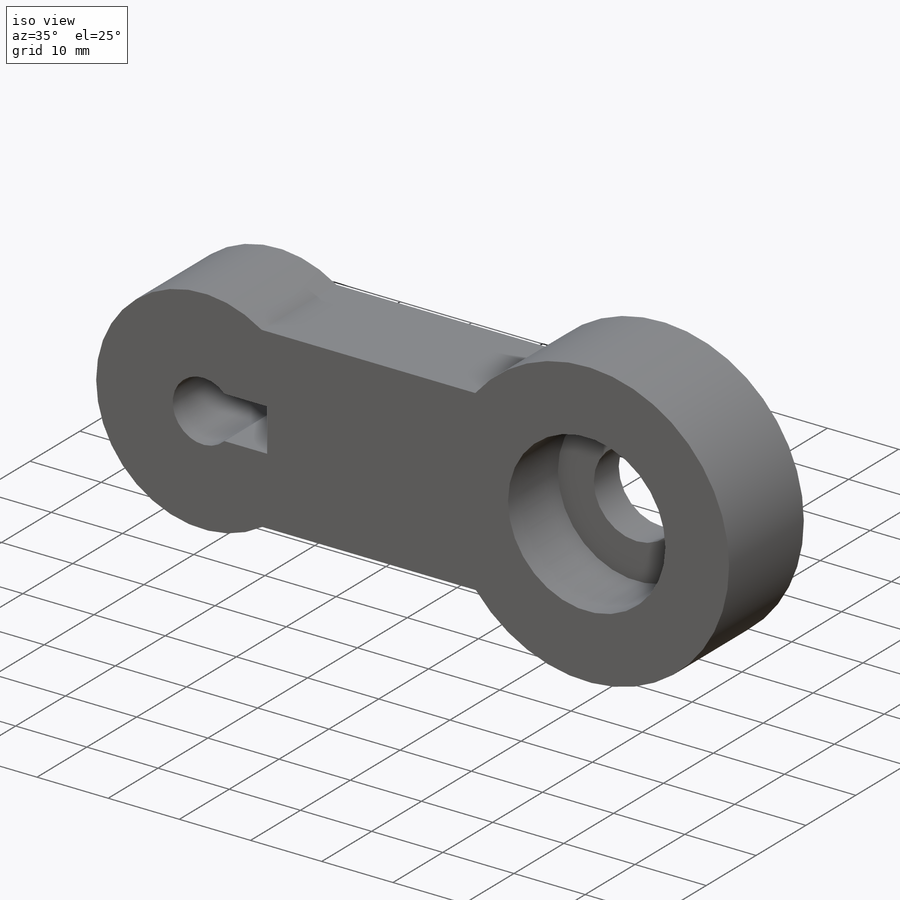
[diagram: iso view]
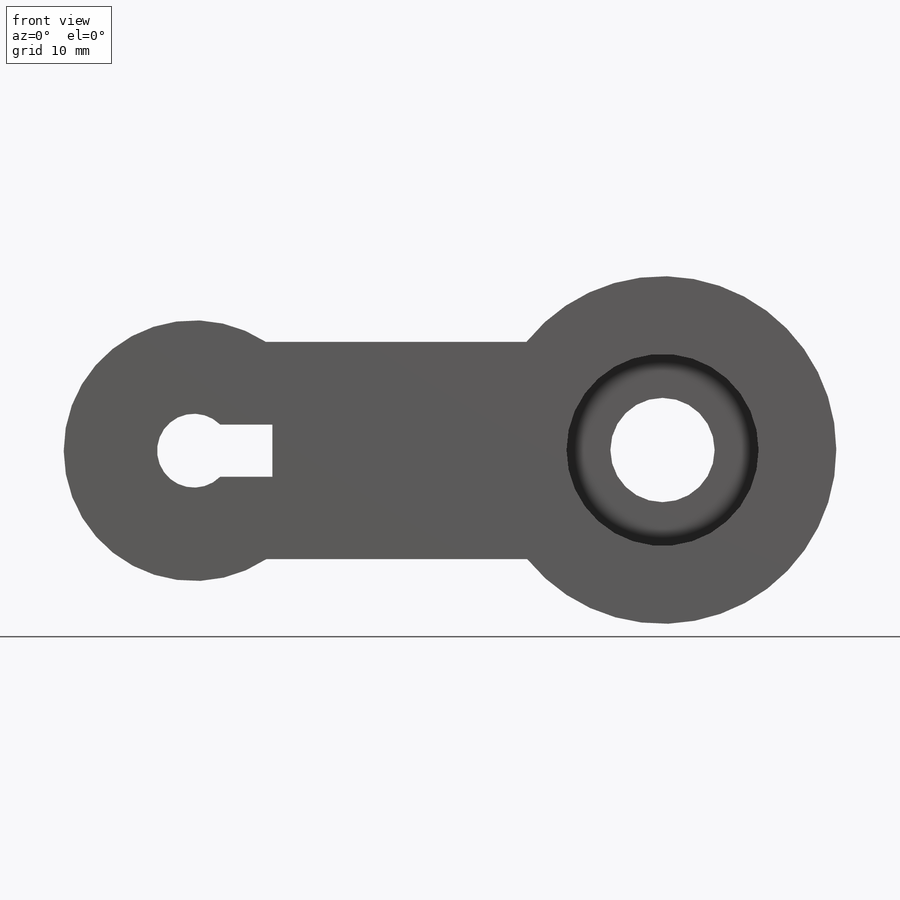
[diagram: front view]
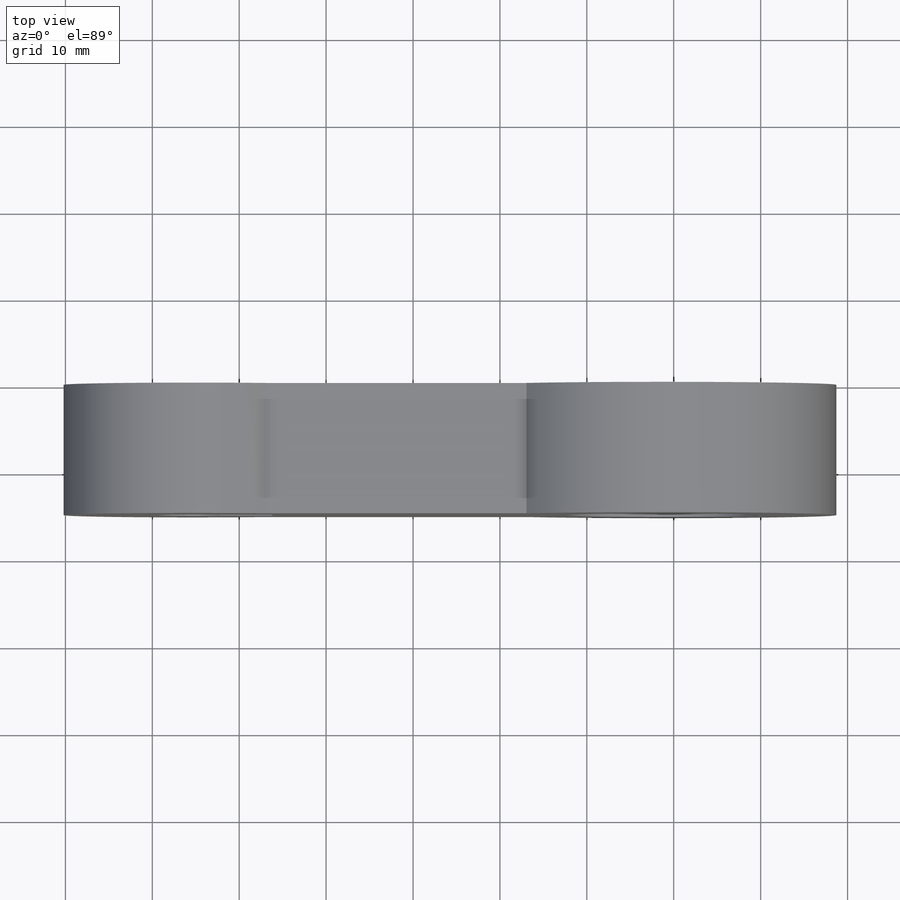
[diagram: top view]
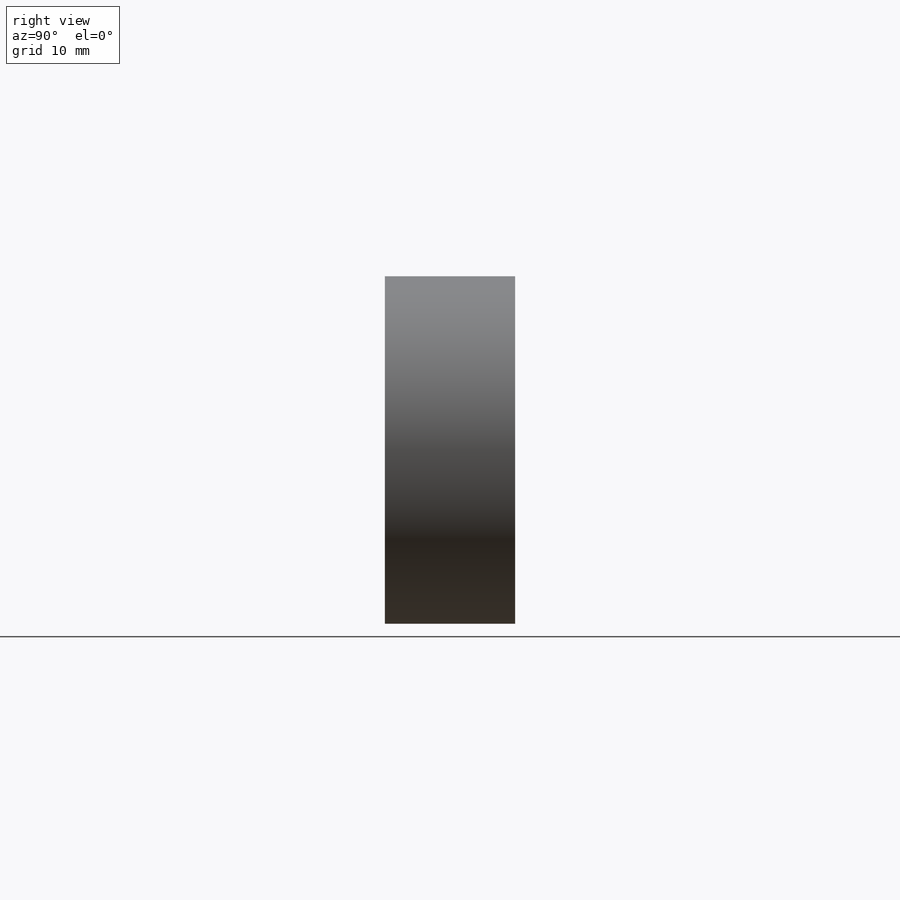
[diagram: right view]
SOLIDWORKS PART (.sldprt)
format: sldprt  version: not decoded by parser v0  size: 325,120 bytes
history: native  units: mm
features: sketch x4, cut_extrude x3, material x1, extrude x1 (+13 scaffold rows collapsed)
feature tree (22):
  scaffold x13  (default folders/planes/origin — collapsed)
  material  "Material <not specified>"
  sketch  "Sketch1"  dims[c1.D3=40.0mm c1.D4=30.0mm c1.D6=8.5mm c1.D1=70.0mm c1.D2=22.1mm c1.D5=0.0mm c2.D6=0.0mm c2.D5=0.0mm c2.D7=30.0mm c2.D8=30.0mm]
  extrude  "Boss-Extrude1"  Depth=15mm
  sketch  "Sketch2"  dims[D2=22.1mm D1=0.0mm]
  cut_extrude  "Cut-Extrude1"  Depth=10mm
  sketch  "Sketch3"  dims[D2=12.0mm D1=0.0mm]
  cut_extrude  "Cut-Extrude2"  Depth=10mm
  sketch  "Sketch5"  dims[c1.D1=~5.227634mm c1.D2=8.5mm c2.D1=0.0mm c2.D3=4.25mm c2.D4=4.25mm c2.D5=6.0mm c2.D6=6.0mm]
  cut_extrude  "Cut-Extrude5"  Depth=15mm
decode coverage: 8 of 8 modeling features carry decoded parameters
note: ~ marks probable driven/reference dimensions
note: suppression state not decoded; provenance and decode notes live in map.json
